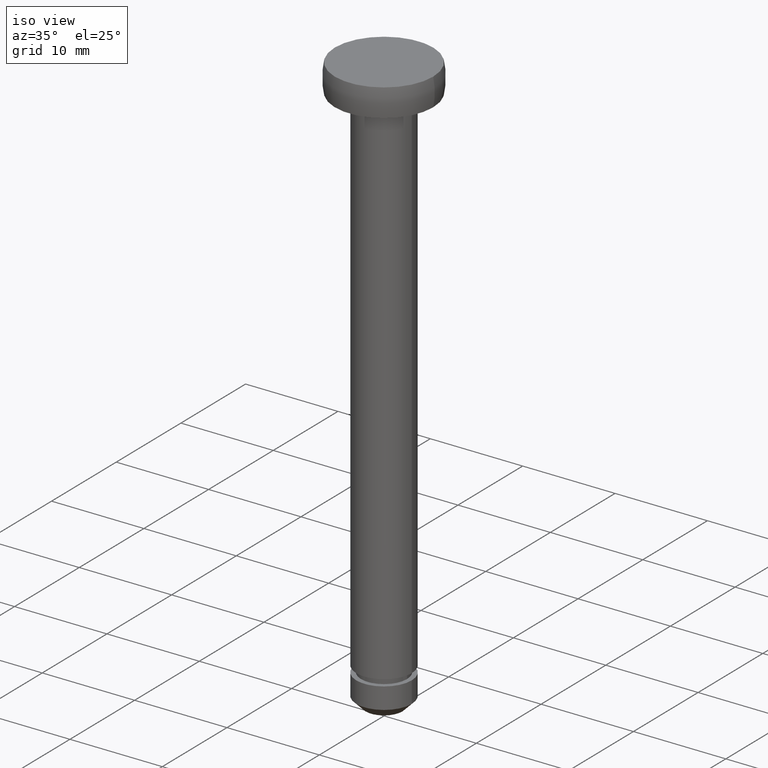
[diagram: clean part render]
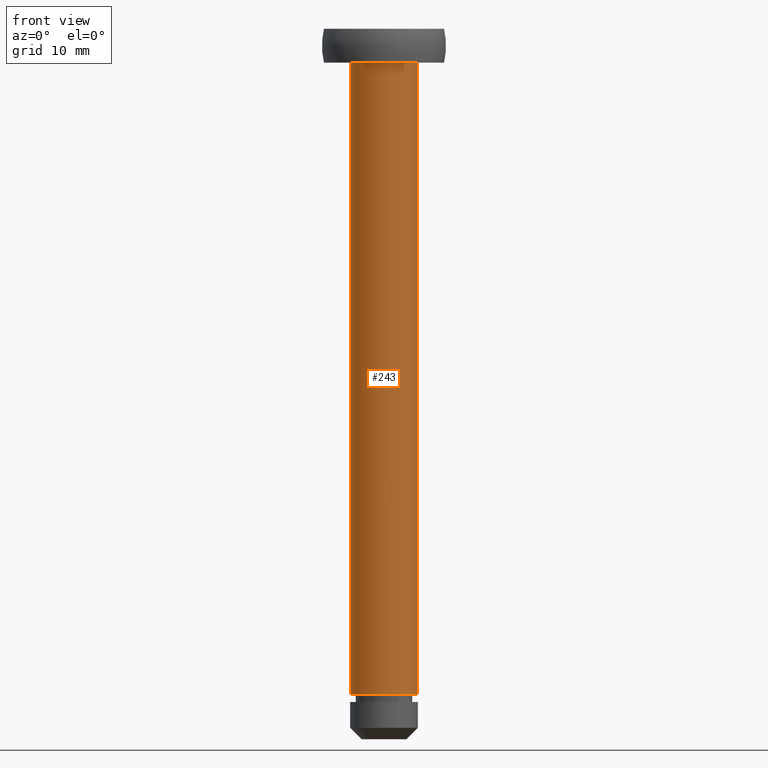
[diagram: tour spotlight — one face highlighted and labeled with its STEP entity id]
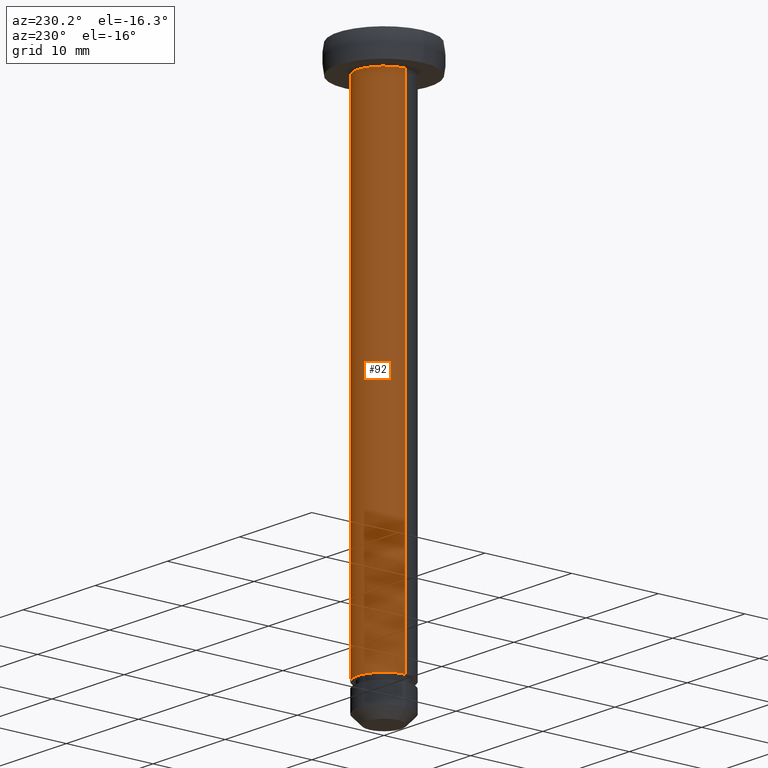
[diagram: tour spotlight — one face highlighted and labeled with its STEP entity id]
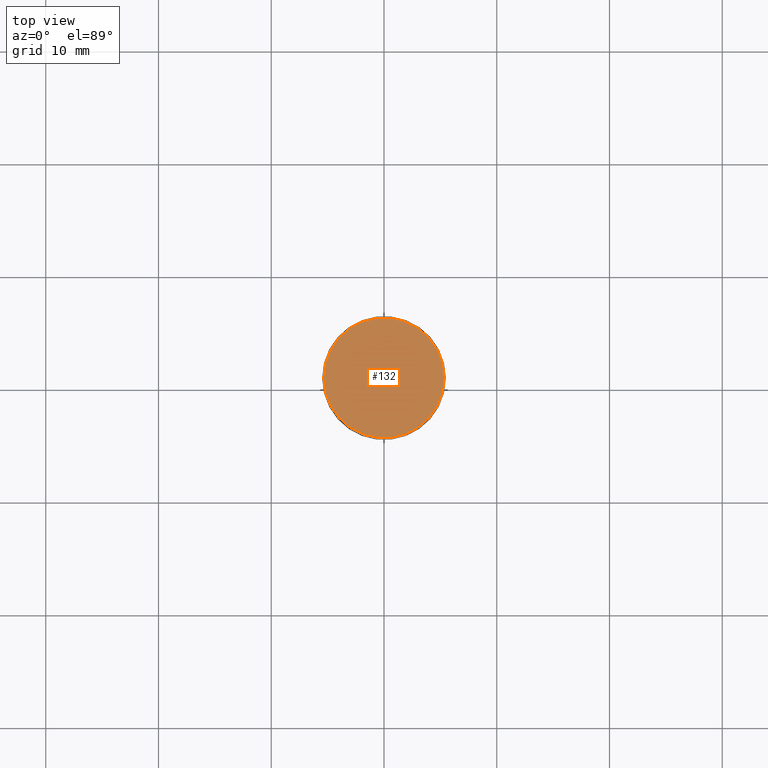
[diagram: tour spotlight — one face highlighted and labeled with its STEP entity id]
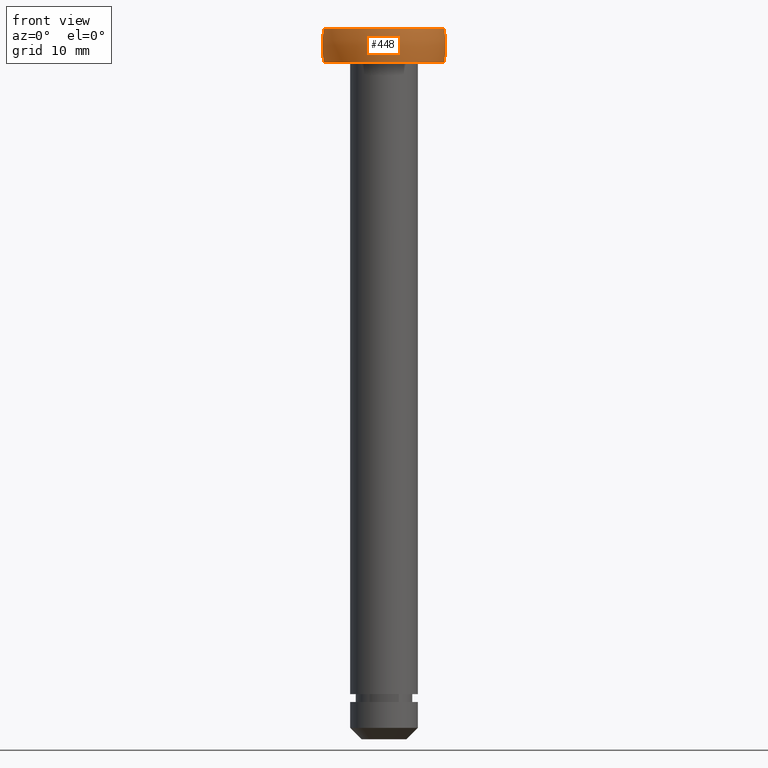
[diagram: tour spotlight — one face highlighted and labeled with its STEP entity id]
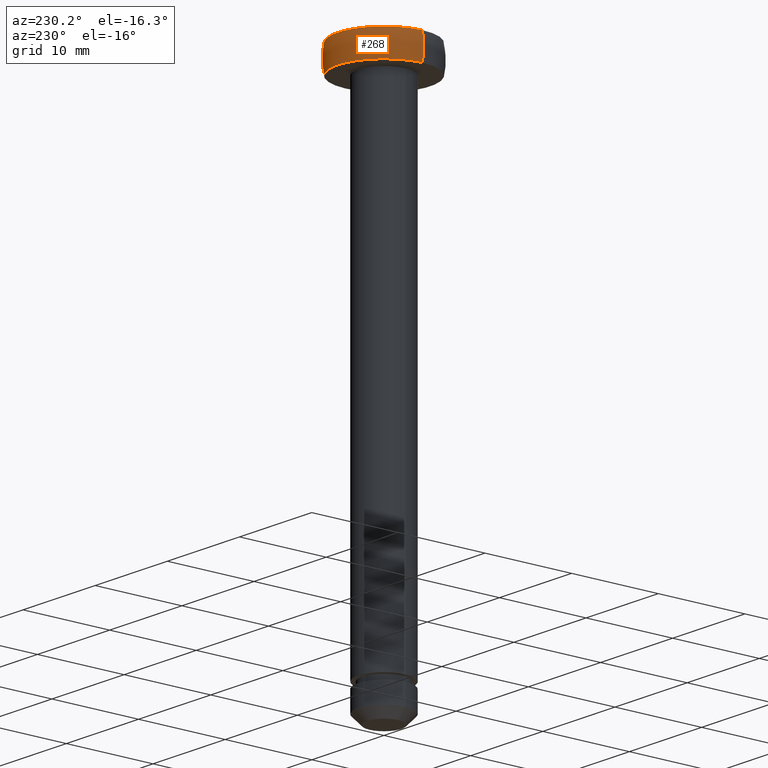
[diagram: tour spotlight — one face highlighted and labeled with its STEP entity id]
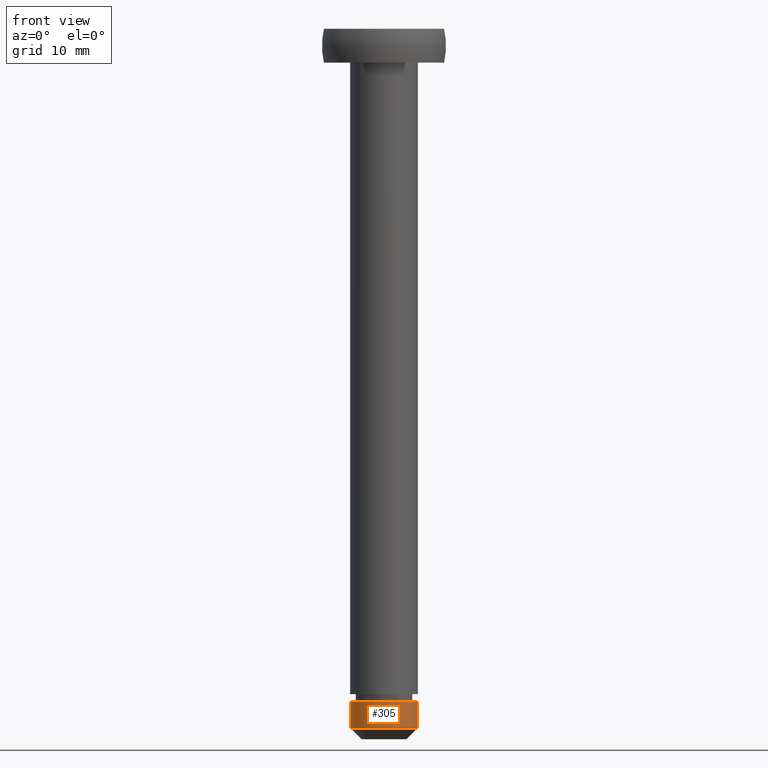
[diagram: tour spotlight — one face highlighted and labeled with its STEP entity id]
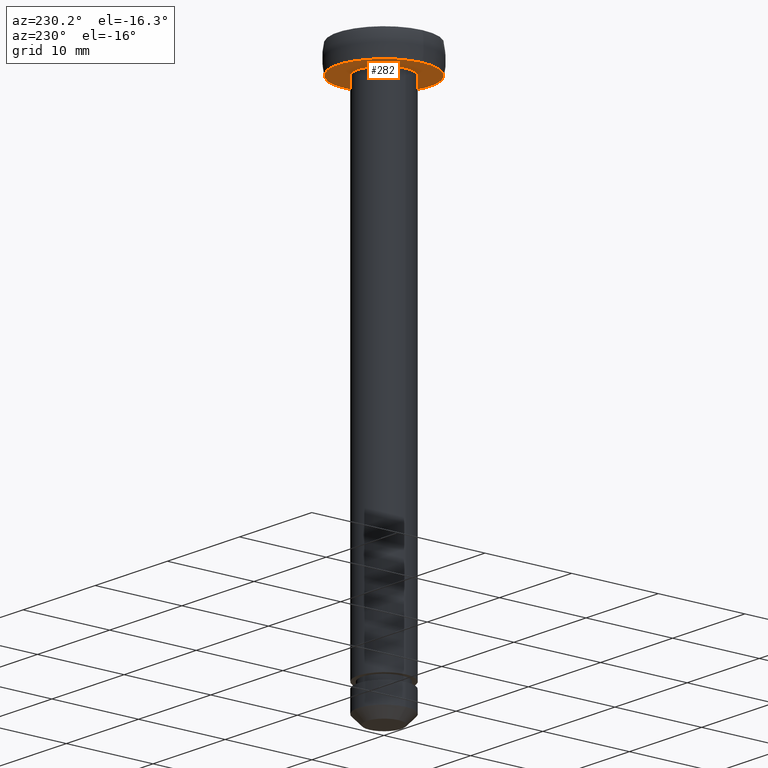
[diagram: tour spotlight — one face highlighted and labeled with its STEP entity id]
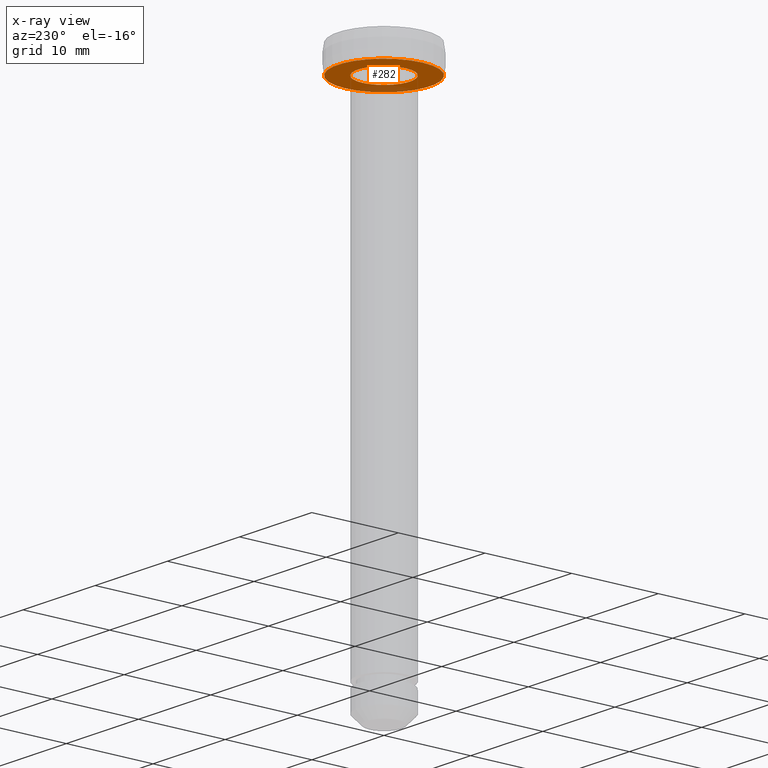
[diagram: x-ray of the same camera — body ghosted, this tour face saturated]
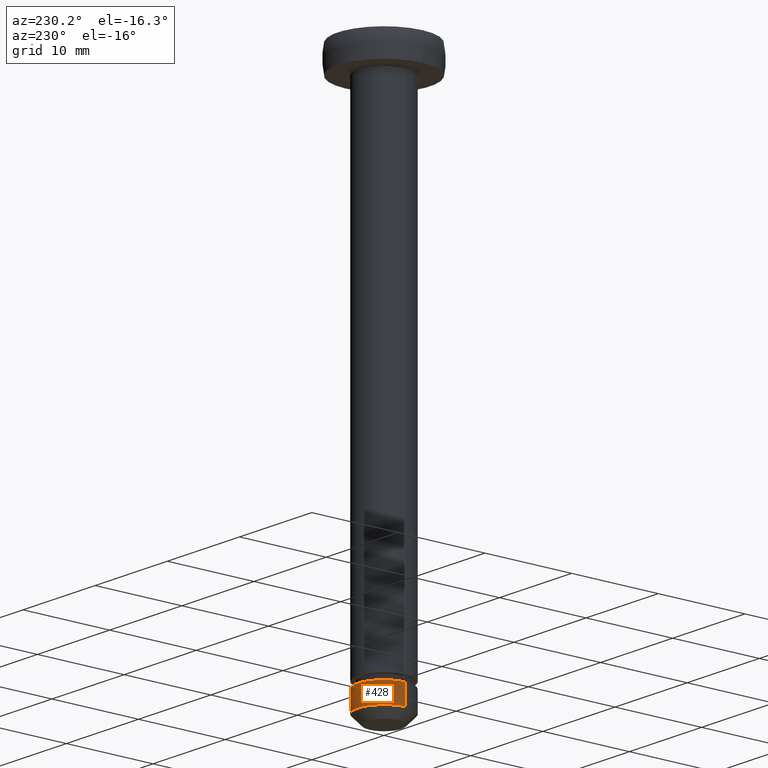
[diagram: tour spotlight — one face highlighted and labeled with its STEP entity id]
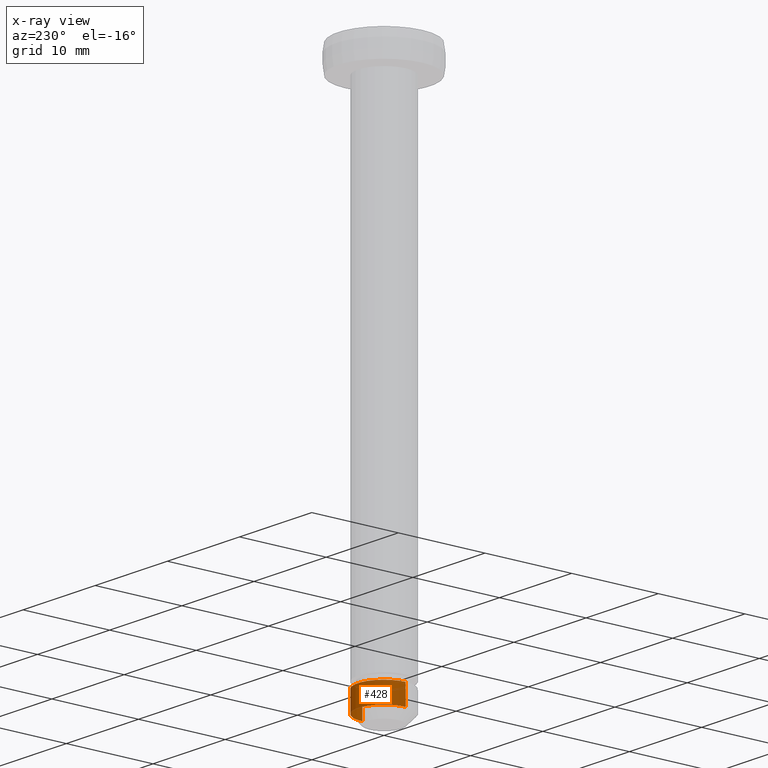
[diagram: x-ray of the same camera — body ghosted, this tour face saturated]
A machine part: a face-by-face anatomy tour. The part has 15 B-rep faces; the first image is the clean iso view, then the 8 largest visible faces are spotlighted one at a time (largest first), each with its STEP entity span.

Face 1 — front view, entity #243. In plain terms, the highlighted cylindrical surface (edge-blend (fillet) strip) has radius 3 mm, axis along (0, 0, -1).
Definition (entity closure, byte-faithful):
#5 = EDGE_LOOP ( 'NONE', ( #110, #356, #138, #108 ) ) ;
#18 = AXIS2_PLACEMENT_3D ( 'NONE', #187, #144, #368 ) ;
#28 = VERTEX_POINT ( 'NONE', #376 ) ;
#38 = CYLINDRICAL_SURFACE ( 'NONE', #157, 3.000000000000000000 ) ;
#51 = VERTEX_POINT ( 'NONE', #265 ) ;
#65 = LINE ( 'NONE', #66, #375 ) ;
#66 = CARTESIAN_POINT ( 'NONE',  ( 3.000000000000000000, 3.673940397442059900E-016, 63.00000000000000000 ) ) ;
#73 = DIRECTION ( 'NONE',  ( 0.0000000000000000000, 0.0000000000000000000, -1.000000000000000000 ) ) ;
#81 = CIRCLE ( 'NONE', #18, 3.000000000000000000 ) ;
#89 = LINE ( 'NONE', #228, #208 ) ;
#93 = CARTESIAN_POINT ( 'NONE',  ( 0.0000000000000000000, 0.0000000000000000000, 59.99999998195649900 ) ) ;
#95 = DIRECTION ( 'NONE',  ( -1.000000000000000000, 0.0000000000000000000, 0.0000000000000000000 ) ) ;
#97 = VERTEX_POINT ( 'NONE', #193 ) ;
#108 = ORIENTED_EDGE ( 'NONE', *, *, #197, .F. ) ;
#110 = ORIENTED_EDGE ( 'NONE', *, *, #154, .F. ) ;
#138 = ORIENTED_EDGE ( 'NONE', *, *, #226, .T. ) ;
#141 = DIRECTION ( 'NONE',  ( -1.000000000000000000, 0.0000000000000000000, 0.0000000000000000000 ) ) ;
#144 = DIRECTION ( 'NONE',  ( 0.0000000000000000000, 0.0000000000000000000, -1.000000000000000000 ) ) ;
#154 = EDGE_CURVE ( 'NONE', #28, #172, #65, .T. ) ;
#157 = AXIS2_PLACEMENT_3D ( 'NONE', #439, #225, #141 ) ;
#172 = VERTEX_POINT ( 'NONE', #332 ) ;
#187 = CARTESIAN_POINT ( 'NONE',  ( 0.0000000000000000000, 0.0000000000000000000, 3.999999981956506200 ) ) ;
#189 = CIRCLE ( 'NONE', #459, 3.000000000000000000 ) ;
#193 = CARTESIAN_POINT ( 'NONE',  ( -3.000000000000000000, 0.0000000000000000000, 59.99999998195649900 ) ) ;
#197 = EDGE_CURVE ( 'NONE', #172, #51, #81, .T. ) ;
#208 = VECTOR ( 'NONE', #73, 1000.000000000000000 ) ;
#225 = DIRECTION ( 'NONE',  ( 0.0000000000000000000, 0.0000000000000000000, -1.000000000000000000 ) ) ;
#226 = EDGE_CURVE ( 'NONE', #97, #51, #89, .T. ) ;
#228 = CARTESIAN_POINT ( 'NONE',  ( -3.000000000000000000, 0.0000000000000000000, 63.00000000000000000 ) ) ;
#243 = ADVANCED_FACE ( 'NONE', ( #399 ), #38, .T. ) ;
#265 = CARTESIAN_POINT ( 'NONE',  ( -3.000000000000000000, 0.0000000000000000000, 3.999999981956506200 ) ) ;
#332 = CARTESIAN_POINT ( 'NONE',  ( 3.000000000000000000, 3.673940397442059900E-016, 3.999999981956506200 ) ) ;
#354 = DIRECTION ( 'NONE',  ( 0.0000000000000000000, 0.0000000000000000000, -1.000000000000000000 ) ) ;
#356 = ORIENTED_EDGE ( 'NONE', *, *, #424, .T. ) ;
#368 = DIRECTION ( 'NONE',  ( -1.000000000000000000, 0.0000000000000000000, 0.0000000000000000000 ) ) ;
#375 = VECTOR ( 'NONE', #405, 1000.000000000000000 ) ;
#376 = CARTESIAN_POINT ( 'NONE',  ( 3.000000000000000000, 3.673940397442059900E-016, 59.99999998195649900 ) ) ;
#399 = FACE_OUTER_BOUND ( 'NONE', #5, .T. ) ;
#405 = DIRECTION ( 'NONE',  ( 0.0000000000000000000, 0.0000000000000000000, -1.000000000000000000 ) ) ;
#424 = EDGE_CURVE ( 'NONE', #28, #97, #189, .T. ) ;
#439 = CARTESIAN_POINT ( 'NONE',  ( 0.0000000000000000000, 0.0000000000000000000, 63.00000000000000000 ) ) ;
#459 = AXIS2_PLACEMENT_3D ( 'NONE', #93, #354, #95 ) ;

Face 2 — auxiliary view, entity #92. In plain terms, the highlighted cylindrical surface (edge-blend (fillet) strip) has radius 3 mm, axis along (0, 0, -1).
Definition (entity closure, byte-faithful):
#28 = VERTEX_POINT ( 'NONE', #376 ) ;
#51 = VERTEX_POINT ( 'NONE', #265 ) ;
#65 = LINE ( 'NONE', #66, #375 ) ;
#66 = CARTESIAN_POINT ( 'NONE',  ( 3.000000000000000000, 3.673940397442059900E-016, 63.00000000000000000 ) ) ;
#73 = DIRECTION ( 'NONE',  ( 0.0000000000000000000, 0.0000000000000000000, -1.000000000000000000 ) ) ;
#87 = ORIENTED_EDGE ( 'NONE', *, *, #143, .T. ) ;
#89 = LINE ( 'NONE', #228, #208 ) ;
#92 = ADVANCED_FACE ( 'NONE', ( #363 ), #206, .T. ) ;
#97 = VERTEX_POINT ( 'NONE', #193 ) ;
#127 = DIRECTION ( 'NONE',  ( 0.0000000000000000000, 0.0000000000000000000, -1.000000000000000000 ) ) ;
#137 = ORIENTED_EDGE ( 'NONE', *, *, #338, .F. ) ;
#143 = EDGE_CURVE ( 'NONE', #97, #28, #421, .T. ) ;
#154 = EDGE_CURVE ( 'NONE', #28, #172, #65, .T. ) ;
#172 = VERTEX_POINT ( 'NONE', #332 ) ;
#184 = EDGE_LOOP ( 'NONE', ( #87, #443, #137, #286 ) ) ;
#193 = CARTESIAN_POINT ( 'NONE',  ( -3.000000000000000000, 0.0000000000000000000, 59.99999998195649900 ) ) ;
#194 = AXIS2_PLACEMENT_3D ( 'NONE', #425, #457, #201 ) ;
#201 = DIRECTION ( 'NONE',  ( -1.000000000000000000, 0.0000000000000000000, 0.0000000000000000000 ) ) ;
#202 = CIRCLE ( 'NONE', #194, 3.000000000000000000 ) ;
#206 = CYLINDRICAL_SURFACE ( 'NONE', #400, 3.000000000000000000 ) ;
#208 = VECTOR ( 'NONE', #73, 1000.000000000000000 ) ;
#226 = EDGE_CURVE ( 'NONE', #97, #51, #89, .T. ) ;
#228 = CARTESIAN_POINT ( 'NONE',  ( -3.000000000000000000, 0.0000000000000000000, 63.00000000000000000 ) ) ;
#236 = DIRECTION ( 'NONE',  ( -1.000000000000000000, 0.0000000000000000000, 0.0000000000000000000 ) ) ;
#265 = CARTESIAN_POINT ( 'NONE',  ( -3.000000000000000000, 0.0000000000000000000, 3.999999981956506200 ) ) ;
#286 = ORIENTED_EDGE ( 'NONE', *, *, #226, .F. ) ;
#332 = CARTESIAN_POINT ( 'NONE',  ( 3.000000000000000000, 3.673940397442059900E-016, 3.999999981956506200 ) ) ;
#338 = EDGE_CURVE ( 'NONE', #51, #172, #202, .T. ) ;
#342 = CARTESIAN_POINT ( 'NONE',  ( 0.0000000000000000000, 0.0000000000000000000, 59.99999998195649900 ) ) ;
#363 = FACE_OUTER_BOUND ( 'NONE', #184, .T. ) ;
#375 = VECTOR ( 'NONE', #405, 1000.000000000000000 ) ;
#376 = CARTESIAN_POINT ( 'NONE',  ( 3.000000000000000000, 3.673940397442059900E-016, 59.99999998195649900 ) ) ;
#381 = DIRECTION ( 'NONE',  ( 0.0000000000000000000, 0.0000000000000000000, -1.000000000000000000 ) ) ;
#383 = DIRECTION ( 'NONE',  ( -1.000000000000000000, 0.0000000000000000000, 0.0000000000000000000 ) ) ;
#394 = AXIS2_PLACEMENT_3D ( 'NONE', #342, #127, #383 ) ;
#400 = AXIS2_PLACEMENT_3D ( 'NONE', #420, #381, #236 ) ;
#405 = DIRECTION ( 'NONE',  ( 0.0000000000000000000, 0.0000000000000000000, -1.000000000000000000 ) ) ;
#420 = CARTESIAN_POINT ( 'NONE',  ( 0.0000000000000000000, 0.0000000000000000000, 63.00000000000000000 ) ) ;
#421 = CIRCLE ( 'NONE', #394, 3.000000000000000000 ) ;
#425 = CARTESIAN_POINT ( 'NONE',  ( 0.0000000000000000000, 0.0000000000000000000, 3.999999981956506200 ) ) ;
#443 = ORIENTED_EDGE ( 'NONE', *, *, #154, .T. ) ;
#457 = DIRECTION ( 'NONE',  ( 0.0000000000000000000, 0.0000000000000000000, -1.000000000000000000 ) ) ;

Face 3 — top view, entity #132. In plain terms, the highlighted planar face has unit normal (0, 0, 1).
Definition (entity closure, byte-faithful):
#12 = VERTEX_POINT ( 'NONE', #446 ) ;
#14 = CIRCLE ( 'NONE', #423, 5.328427118366794200 ) ;
#35 = AXIS2_PLACEMENT_3D ( 'NONE', #169, #430, #213 ) ;
#40 = CARTESIAN_POINT ( 'NONE',  ( -5.328427118366794200, 0.0000000000000000000, 63.00000000000000000 ) ) ;
#46 = CARTESIAN_POINT ( 'NONE',  ( 0.0000000000000000000, 0.0000000000000000000, 63.00000000000000000 ) ) ;
#83 = PLANE ( 'NONE',  #340 ) ;
#116 = DIRECTION ( 'NONE',  ( 1.000000000000000000, 0.0000000000000000000, 0.0000000000000000000 ) ) ;
#118 = EDGE_CURVE ( 'NONE', #12, #185, #14, .T. ) ;
#132 = ADVANCED_FACE ( 'NONE', ( #380 ), #83, .T. ) ;
#148 = DIRECTION ( 'NONE',  ( 0.0000000000000000000, -0.0000000000000000000, 1.000000000000000000 ) ) ;
#169 = CARTESIAN_POINT ( 'NONE',  ( 0.0000000000000000000, 0.0000000000000000000, 63.00000000000000000 ) ) ;
#185 = VERTEX_POINT ( 'NONE', #40 ) ;
#192 = DIRECTION ( 'NONE',  ( 0.0000000000000000000, 0.0000000000000000000, -1.000000000000000000 ) ) ;
#196 = ORIENTED_EDGE ( 'NONE', *, *, #118, .F. ) ;
#213 = DIRECTION ( 'NONE',  ( -1.000000000000000000, 0.0000000000000000000, 0.0000000000000000000 ) ) ;
#229 = ORIENTED_EDGE ( 'NONE', *, *, #435, .F. ) ;
#232 = DIRECTION ( 'NONE',  ( -1.000000000000000000, 0.0000000000000000000, 0.0000000000000000000 ) ) ;
#269 = CARTESIAN_POINT ( 'NONE',  ( 5.328427118366794200, 0.0000000000000000000, 63.00000000000000000 ) ) ;
#279 = CIRCLE ( 'NONE', #35, 5.328427118366794200 ) ;
#306 = EDGE_LOOP ( 'NONE', ( #229, #196 ) ) ;
#340 = AXIS2_PLACEMENT_3D ( 'NONE', #269, #148, #116 ) ;
#380 = FACE_OUTER_BOUND ( 'NONE', #306, .T. ) ;
#423 = AXIS2_PLACEMENT_3D ( 'NONE', #46, #192, #232 ) ;
#430 = DIRECTION ( 'NONE',  ( 0.0000000000000000000, 0.0000000000000000000, -1.000000000000000000 ) ) ;
#435 = EDGE_CURVE ( 'NONE', #185, #12, #279, .T. ) ;
#446 = CARTESIAN_POINT ( 'NONE',  ( 5.328427118366793300, 6.525441214997859000E-016, 63.00000000000000000 ) ) ;

Face 4 — front view, entity #448. In plain terms, the highlighted toroidal blend (fillet) surface has major radius 1.1428 mm and minor (blend) radius 6.6428 mm.
Definition (entity closure, byte-faithful):
#2 = CARTESIAN_POINT ( 'NONE',  ( 1.142766791230102100, 0.0000000000000000000, 61.49999999097819600 ) ) ;
#12 = VERTEX_POINT ( 'NONE', #446 ) ;
#13 = CARTESIAN_POINT ( 'NONE',  ( 5.328427118366801300, 6.525441214997862900E-016, 59.99999998195649900 ) ) ;
#14 = CIRCLE ( 'NONE', #423, 5.328427118366794200 ) ;
#40 = CARTESIAN_POINT ( 'NONE',  ( -5.328427118366794200, 0.0000000000000000000, 63.00000000000000000 ) ) ;
#46 = CARTESIAN_POINT ( 'NONE',  ( 0.0000000000000000000, 0.0000000000000000000, 63.00000000000000000 ) ) ;
#52 = DIRECTION ( 'NONE',  ( 0.0000000000000000000, 0.0000000000000000000, -1.000000000000000000 ) ) ;
#64 = CARTESIAN_POINT ( 'NONE',  ( -1.142766791230102100, -1.399485693051835900E-016, 61.49999999097819600 ) ) ;
#79 = AXIS2_PLACEMENT_3D ( 'NONE', #135, #52, #464 ) ;
#100 = DIRECTION ( 'NONE',  ( -1.224646799147353200E-016, 1.000000000000000000, 0.0000000000000000000 ) ) ;
#109 = AXIS2_PLACEMENT_3D ( 'NONE', #2, #182, #407 ) ;
#118 = EDGE_CURVE ( 'NONE', #12, #185, #14, .T. ) ;
#125 = CIRCLE ( 'NONE', #109, 6.642766791230083200 ) ;
#126 = EDGE_CURVE ( 'NONE', #159, #408, #181, .T. ) ;
#129 = ORIENTED_EDGE ( 'NONE', *, *, #118, .T. ) ;
#133 = CARTESIAN_POINT ( 'NONE',  ( -5.328427118366800400, 0.0000000000000000000, 59.99999998195649900 ) ) ;
#135 = CARTESIAN_POINT ( 'NONE',  ( 0.0000000000000000000, 0.0000000000000000000, 61.49999999097819600 ) ) ;
#153 = DIRECTION ( 'NONE',  ( -1.000000000000000000, 0.0000000000000000000, 0.0000000000000000000 ) ) ;
#159 = VERTEX_POINT ( 'NONE', #13 ) ;
#181 = CIRCLE ( 'NONE', #343, 5.328427118366800400 ) ;
#182 = DIRECTION ( 'NONE',  ( -0.0000000000000000000, -1.000000000000000000, -0.0000000000000000000 ) ) ;
#185 = VERTEX_POINT ( 'NONE', #40 ) ;
#186 = AXIS2_PLACEMENT_3D ( 'NONE', #64, #100, #325 ) ;
#192 = DIRECTION ( 'NONE',  ( 0.0000000000000000000, 0.0000000000000000000, -1.000000000000000000 ) ) ;
#232 = DIRECTION ( 'NONE',  ( -1.000000000000000000, 0.0000000000000000000, 0.0000000000000000000 ) ) ;
#249 = EDGE_CURVE ( 'NONE', #185, #408, #125, .T. ) ;
#250 = EDGE_CURVE ( 'NONE', #12, #159, #355, .T. ) ;
#285 = ORIENTED_EDGE ( 'NONE', *, *, #250, .F. ) ;
#325 = DIRECTION ( 'NONE',  ( -1.000000000000000000, -1.224646799147353200E-016, 0.0000000000000000000 ) ) ;
#343 = AXIS2_PLACEMENT_3D ( 'NONE', #413, #379, #153 ) ;
#346 = TOROIDAL_SURFACE ( 'NONE', #79, -1.142766791230102100, 6.642766791230085000 ) ;
#355 = CIRCLE ( 'NONE', #186, 6.642766791230085000 ) ;
#357 = ORIENTED_EDGE ( 'NONE', *, *, #249, .T. ) ;
#373 = FACE_OUTER_BOUND ( 'NONE', #467, .T. ) ;
#379 = DIRECTION ( 'NONE',  ( 0.0000000000000000000, 0.0000000000000000000, -1.000000000000000000 ) ) ;
#407 = DIRECTION ( 'NONE',  ( 0.0000000000000000000, 0.0000000000000000000, -1.000000000000000000 ) ) ;
#408 = VERTEX_POINT ( 'NONE', #133 ) ;
#413 = CARTESIAN_POINT ( 'NONE',  ( 0.0000000000000000000, 0.0000000000000000000, 59.99999998195649900 ) ) ;
#423 = AXIS2_PLACEMENT_3D ( 'NONE', #46, #192, #232 ) ;
#446 = CARTESIAN_POINT ( 'NONE',  ( 5.328427118366793300, 6.525441214997859000E-016, 63.00000000000000000 ) ) ;
#448 = ADVANCED_FACE ( 'NONE', ( #373 ), #346, .T. ) ;
#456 = ORIENTED_EDGE ( 'NONE', *, *, #126, .F. ) ;
#464 = DIRECTION ( 'NONE',  ( -1.000000000000000000, 0.0000000000000000000, 0.0000000000000000000 ) ) ;
#467 = EDGE_LOOP ( 'NONE', ( #285, #129, #357, #456 ) ) ;

Face 5 — auxiliary view, entity #268. In plain terms, the highlighted toroidal blend (fillet) surface has major radius 1.1428 mm and minor (blend) radius 6.6428 mm.
Definition (entity closure, byte-faithful):
#2 = CARTESIAN_POINT ( 'NONE',  ( 1.142766791230102100, 0.0000000000000000000, 61.49999999097819600 ) ) ;
#12 = VERTEX_POINT ( 'NONE', #446 ) ;
#13 = CARTESIAN_POINT ( 'NONE',  ( 5.328427118366801300, 6.525441214997862900E-016, 59.99999998195649900 ) ) ;
#35 = AXIS2_PLACEMENT_3D ( 'NONE', #169, #430, #213 ) ;
#40 = CARTESIAN_POINT ( 'NONE',  ( -5.328427118366794200, 0.0000000000000000000, 63.00000000000000000 ) ) ;
#61 = FACE_OUTER_BOUND ( 'NONE', #200, .T. ) ;
#64 = CARTESIAN_POINT ( 'NONE',  ( -1.142766791230102100, -1.399485693051835900E-016, 61.49999999097819600 ) ) ;
#69 = DIRECTION ( 'NONE',  ( 0.0000000000000000000, 0.0000000000000000000, -1.000000000000000000 ) ) ;
#90 = CIRCLE ( 'NONE', #341, 5.328427118366800400 ) ;
#100 = DIRECTION ( 'NONE',  ( -1.224646799147353200E-016, 1.000000000000000000, 0.0000000000000000000 ) ) ;
#109 = AXIS2_PLACEMENT_3D ( 'NONE', #2, #182, #407 ) ;
#115 = ORIENTED_EDGE ( 'NONE', *, *, #362, .F. ) ;
#125 = CIRCLE ( 'NONE', #109, 6.642766791230083200 ) ;
#133 = CARTESIAN_POINT ( 'NONE',  ( -5.328427118366800400, 0.0000000000000000000, 59.99999998195649900 ) ) ;
#147 = ORIENTED_EDGE ( 'NONE', *, *, #250, .T. ) ;
#159 = VERTEX_POINT ( 'NONE', #13 ) ;
#164 = DIRECTION ( 'NONE',  ( 0.0000000000000000000, 0.0000000000000000000, -1.000000000000000000 ) ) ;
#168 = AXIS2_PLACEMENT_3D ( 'NONE', #436, #69, #179 ) ;
#169 = CARTESIAN_POINT ( 'NONE',  ( 0.0000000000000000000, 0.0000000000000000000, 63.00000000000000000 ) ) ;
#179 = DIRECTION ( 'NONE',  ( -1.000000000000000000, 0.0000000000000000000, 0.0000000000000000000 ) ) ;
#182 = DIRECTION ( 'NONE',  ( -0.0000000000000000000, -1.000000000000000000, -0.0000000000000000000 ) ) ;
#185 = VERTEX_POINT ( 'NONE', #40 ) ;
#186 = AXIS2_PLACEMENT_3D ( 'NONE', #64, #100, #325 ) ;
#200 = EDGE_LOOP ( 'NONE', ( #214, #147, #115, #432 ) ) ;
#213 = DIRECTION ( 'NONE',  ( -1.000000000000000000, 0.0000000000000000000, 0.0000000000000000000 ) ) ;
#214 = ORIENTED_EDGE ( 'NONE', *, *, #435, .T. ) ;
#249 = EDGE_CURVE ( 'NONE', #185, #408, #125, .T. ) ;
#250 = EDGE_CURVE ( 'NONE', #12, #159, #355, .T. ) ;
#268 = ADVANCED_FACE ( 'NONE', ( #61 ), #417, .T. ) ;
#279 = CIRCLE ( 'NONE', #35, 5.328427118366794200 ) ;
#325 = DIRECTION ( 'NONE',  ( -1.000000000000000000, -1.224646799147353200E-016, 0.0000000000000000000 ) ) ;
#341 = AXIS2_PLACEMENT_3D ( 'NONE', #388, #164, #427 ) ;
#355 = CIRCLE ( 'NONE', #186, 6.642766791230085000 ) ;
#362 = EDGE_CURVE ( 'NONE', #408, #159, #90, .T. ) ;
#388 = CARTESIAN_POINT ( 'NONE',  ( 0.0000000000000000000, 0.0000000000000000000, 59.99999998195649900 ) ) ;
#407 = DIRECTION ( 'NONE',  ( 0.0000000000000000000, 0.0000000000000000000, -1.000000000000000000 ) ) ;
#408 = VERTEX_POINT ( 'NONE', #133 ) ;
#417 = TOROIDAL_SURFACE ( 'NONE', #168, -1.142766791230102100, 6.642766791230085000 ) ;
#427 = DIRECTION ( 'NONE',  ( -1.000000000000000000, 0.0000000000000000000, 0.0000000000000000000 ) ) ;
#430 = DIRECTION ( 'NONE',  ( 0.0000000000000000000, 0.0000000000000000000, -1.000000000000000000 ) ) ;
#432 = ORIENTED_EDGE ( 'NONE', *, *, #249, .F. ) ;
#435 = EDGE_CURVE ( 'NONE', #185, #12, #279, .T. ) ;
#436 = CARTESIAN_POINT ( 'NONE',  ( 0.0000000000000000000, 0.0000000000000000000, 61.49999999097819600 ) ) ;
#446 = CARTESIAN_POINT ( 'NONE',  ( 5.328427118366793300, 6.525441214997859000E-016, 63.00000000000000000 ) ) ;

Face 6 — front view, entity #305. In plain terms, the highlighted cylindrical surface (edge-blend (fillet) strip) has radius 3 mm, axis along (0, 0, -1).
Definition (entity closure, byte-faithful):
#6 = VERTEX_POINT ( 'NONE', #304 ) ;
#22 = CARTESIAN_POINT ( 'NONE',  ( 0.0000000000000000000, 0.0000000000000000000, 63.00000000000000000 ) ) ;
#23 = VECTOR ( 'NONE', #254, 1000.000000000000000 ) ;
#25 = VERTEX_POINT ( 'NONE', #152 ) ;
#26 = DIRECTION ( 'NONE',  ( 0.0000000000000000000, 0.0000000000000000000, -1.000000000000000000 ) ) ;
#75 = VERTEX_POINT ( 'NONE', #273 ) ;
#80 = VECTOR ( 'NONE', #91, 1000.000000000000000 ) ;
#88 = ORIENTED_EDGE ( 'NONE', *, *, #344, .F. ) ;
#91 = DIRECTION ( 'NONE',  ( 0.0000000000000000000, 0.0000000000000000000, -1.000000000000000000 ) ) ;
#99 = CIRCLE ( 'NONE', #246, 3.000000000000000000 ) ;
#128 = DIRECTION ( 'NONE',  ( -1.000000000000000000, 0.0000000000000000000, 0.0000000000000000000 ) ) ;
#130 = CARTESIAN_POINT ( 'NONE',  ( 3.000000000000000000, 3.673940397442059900E-016, 63.00000000000000000 ) ) ;
#145 = EDGE_LOOP ( 'NONE', ( #297, #465, #174, #88 ) ) ;
#152 = CARTESIAN_POINT ( 'NONE',  ( -2.999999999999999600, 3.673940397442058900E-016, 0.9999999819565036400 ) ) ;
#163 = CARTESIAN_POINT ( 'NONE',  ( 0.0000000000000000000, 0.0000000000000000000, 3.299999981956493100 ) ) ;
#174 = ORIENTED_EDGE ( 'NONE', *, *, #301, .T. ) ;
#176 = LINE ( 'NONE', #130, #80 ) ;
#246 = AXIS2_PLACEMENT_3D ( 'NONE', #163, #386, #128 ) ;
#254 = DIRECTION ( 'NONE',  ( 0.0000000000000000000, 0.0000000000000000000, -1.000000000000000000 ) ) ;
#272 = AXIS2_PLACEMENT_3D ( 'NONE', #22, #317, #397 ) ;
#273 = CARTESIAN_POINT ( 'NONE',  ( 2.999999999999999600, 0.0000000000000000000, 0.9999999819565036400 ) ) ;
#278 = VERTEX_POINT ( 'NONE', #403 ) ;
#295 = AXIS2_PLACEMENT_3D ( 'NONE', #431, #26, #458 ) ;
#297 = ORIENTED_EDGE ( 'NONE', *, *, #371, .F. ) ;
#301 = EDGE_CURVE ( 'NONE', #6, #25, #412, .T. ) ;
#303 = FACE_OUTER_BOUND ( 'NONE', #145, .T. ) ;
#304 = CARTESIAN_POINT ( 'NONE',  ( -3.000000000000000000, 0.0000000000000000000, 3.299999981956493100 ) ) ;
#305 = ADVANCED_FACE ( 'NONE', ( #303 ), #387, .T. ) ;
#317 = DIRECTION ( 'NONE',  ( 0.0000000000000000000, 0.0000000000000000000, -1.000000000000000000 ) ) ;
#323 = EDGE_CURVE ( 'NONE', #278, #6, #99, .T. ) ;
#344 = EDGE_CURVE ( 'NONE', #75, #25, #402, .T. ) ;
#359 = CARTESIAN_POINT ( 'NONE',  ( -3.000000000000000000, 0.0000000000000000000, 63.00000000000000000 ) ) ;
#371 = EDGE_CURVE ( 'NONE', #278, #75, #176, .T. ) ;
#386 = DIRECTION ( 'NONE',  ( 0.0000000000000000000, 0.0000000000000000000, -1.000000000000000000 ) ) ;
#387 = CYLINDRICAL_SURFACE ( 'NONE', #272, 3.000000000000000000 ) ;
#397 = DIRECTION ( 'NONE',  ( -1.000000000000000000, 0.0000000000000000000, 0.0000000000000000000 ) ) ;
#402 = CIRCLE ( 'NONE', #295, 2.999999999999999600 ) ;
#403 = CARTESIAN_POINT ( 'NONE',  ( 3.000000000000000000, 3.673940397442059900E-016, 3.299999981956493100 ) ) ;
#412 = LINE ( 'NONE', #359, #23 ) ;
#431 = CARTESIAN_POINT ( 'NONE',  ( 0.0000000000000000000, 0.0000000000000000000, 0.9999999819565036400 ) ) ;
#458 = DIRECTION ( 'NONE',  ( -1.000000000000000000, 0.0000000000000000000, 0.0000000000000000000 ) ) ;
#465 = ORIENTED_EDGE ( 'NONE', *, *, #323, .T. ) ;

Face 7 — auxiliary view, entity #282. An x-ray twin of the same camera follows (body ghosted, this face saturated) — the face is partly hidden behind the body. In plain terms, the highlighted planar face has unit normal (0, 0, -1).
Definition (entity closure, byte-faithful):
#13 = CARTESIAN_POINT ( 'NONE',  ( 5.328427118366801300, 6.525441214997862900E-016, 59.99999998195649900 ) ) ;
#17 = ORIENTED_EDGE ( 'NONE', *, *, #126, .T. ) ;
#28 = VERTEX_POINT ( 'NONE', #376 ) ;
#32 = FACE_BOUND ( 'NONE', #188, .T. ) ;
#34 = ORIENTED_EDGE ( 'NONE', *, *, #143, .F. ) ;
#50 = ORIENTED_EDGE ( 'NONE', *, *, #362, .T. ) ;
#90 = CIRCLE ( 'NONE', #341, 5.328427118366800400 ) ;
#93 = CARTESIAN_POINT ( 'NONE',  ( 0.0000000000000000000, 0.0000000000000000000, 59.99999998195649900 ) ) ;
#95 = DIRECTION ( 'NONE',  ( -1.000000000000000000, 0.0000000000000000000, 0.0000000000000000000 ) ) ;
#97 = VERTEX_POINT ( 'NONE', #193 ) ;
#113 = FACE_OUTER_BOUND ( 'NONE', #211, .T. ) ;
#126 = EDGE_CURVE ( 'NONE', #159, #408, #181, .T. ) ;
#127 = DIRECTION ( 'NONE',  ( 0.0000000000000000000, 0.0000000000000000000, -1.000000000000000000 ) ) ;
#133 = CARTESIAN_POINT ( 'NONE',  ( -5.328427118366800400, 0.0000000000000000000, 59.99999998195649900 ) ) ;
#139 = PLANE ( 'NONE',  #222 ) ;
#140 = DIRECTION ( 'NONE',  ( 0.0000000000000000000, 0.0000000000000000000, -1.000000000000000000 ) ) ;
#143 = EDGE_CURVE ( 'NONE', #97, #28, #421, .T. ) ;
#153 = DIRECTION ( 'NONE',  ( -1.000000000000000000, 0.0000000000000000000, 0.0000000000000000000 ) ) ;
#159 = VERTEX_POINT ( 'NONE', #13 ) ;
#164 = DIRECTION ( 'NONE',  ( 0.0000000000000000000, 0.0000000000000000000, -1.000000000000000000 ) ) ;
#181 = CIRCLE ( 'NONE', #343, 5.328427118366800400 ) ;
#188 = EDGE_LOOP ( 'NONE', ( #34, #264 ) ) ;
#189 = CIRCLE ( 'NONE', #459, 3.000000000000000000 ) ;
#193 = CARTESIAN_POINT ( 'NONE',  ( -3.000000000000000000, 0.0000000000000000000, 59.99999998195649900 ) ) ;
#211 = EDGE_LOOP ( 'NONE', ( #50, #17 ) ) ;
#218 = CARTESIAN_POINT ( 'NONE',  ( 3.000000000000000000, 0.0000000000000000000, 59.99999998195649900 ) ) ;
#222 = AXIS2_PLACEMENT_3D ( 'NONE', #218, #140, #288 ) ;
#264 = ORIENTED_EDGE ( 'NONE', *, *, #424, .F. ) ;
#282 = ADVANCED_FACE ( 'NONE', ( #113, #32 ), #139, .T. ) ;
#288 = DIRECTION ( 'NONE',  ( -1.000000000000000000, 0.0000000000000000000, -0.0000000000000000000 ) ) ;
#341 = AXIS2_PLACEMENT_3D ( 'NONE', #388, #164, #427 ) ;
#342 = CARTESIAN_POINT ( 'NONE',  ( 0.0000000000000000000, 0.0000000000000000000, 59.99999998195649900 ) ) ;
#343 = AXIS2_PLACEMENT_3D ( 'NONE', #413, #379, #153 ) ;
#354 = DIRECTION ( 'NONE',  ( 0.0000000000000000000, 0.0000000000000000000, -1.000000000000000000 ) ) ;
#362 = EDGE_CURVE ( 'NONE', #408, #159, #90, .T. ) ;
#376 = CARTESIAN_POINT ( 'NONE',  ( 3.000000000000000000, 3.673940397442059900E-016, 59.99999998195649900 ) ) ;
#379 = DIRECTION ( 'NONE',  ( 0.0000000000000000000, 0.0000000000000000000, -1.000000000000000000 ) ) ;
#383 = DIRECTION ( 'NONE',  ( -1.000000000000000000, 0.0000000000000000000, 0.0000000000000000000 ) ) ;
#388 = CARTESIAN_POINT ( 'NONE',  ( 0.0000000000000000000, 0.0000000000000000000, 59.99999998195649900 ) ) ;
#394 = AXIS2_PLACEMENT_3D ( 'NONE', #342, #127, #383 ) ;
#408 = VERTEX_POINT ( 'NONE', #133 ) ;
#413 = CARTESIAN_POINT ( 'NONE',  ( 0.0000000000000000000, 0.0000000000000000000, 59.99999998195649900 ) ) ;
#421 = CIRCLE ( 'NONE', #394, 3.000000000000000000 ) ;
#424 = EDGE_CURVE ( 'NONE', #28, #97, #189, .T. ) ;
#427 = DIRECTION ( 'NONE',  ( -1.000000000000000000, 0.0000000000000000000, 0.0000000000000000000 ) ) ;
#459 = AXIS2_PLACEMENT_3D ( 'NONE', #93, #354, #95 ) ;

Face 8 — auxiliary view, entity #428. An x-ray twin of the same camera follows (body ghosted, this face saturated) — the face is partly hidden behind the body. In plain terms, the highlighted cylindrical surface (edge-blend (fillet) strip) has radius 3 mm, axis along (0, 0, -1).
Definition (entity closure, byte-faithful):
#6 = VERTEX_POINT ( 'NONE', #304 ) ;
#23 = VECTOR ( 'NONE', #254, 1000.000000000000000 ) ;
#25 = VERTEX_POINT ( 'NONE', #152 ) ;
#27 = CIRCLE ( 'NONE', #136, 3.000000000000000000 ) ;
#54 = AXIS2_PLACEMENT_3D ( 'NONE', #391, #55, #353 ) ;
#55 = DIRECTION ( 'NONE',  ( 0.0000000000000000000, 0.0000000000000000000, -1.000000000000000000 ) ) ;
#71 = EDGE_CURVE ( 'NONE', #25, #75, #166, .T. ) ;
#75 = VERTEX_POINT ( 'NONE', #273 ) ;
#80 = VECTOR ( 'NONE', #91, 1000.000000000000000 ) ;
#91 = DIRECTION ( 'NONE',  ( 0.0000000000000000000, 0.0000000000000000000, -1.000000000000000000 ) ) ;
#104 = DIRECTION ( 'NONE',  ( 0.0000000000000000000, 0.0000000000000000000, -1.000000000000000000 ) ) ;
#124 = DIRECTION ( 'NONE',  ( 0.0000000000000000000, 0.0000000000000000000, -1.000000000000000000 ) ) ;
#130 = CARTESIAN_POINT ( 'NONE',  ( 3.000000000000000000, 3.673940397442059900E-016, 63.00000000000000000 ) ) ;
#136 = AXIS2_PLACEMENT_3D ( 'NONE', #364, #104, #330 ) ;
#152 = CARTESIAN_POINT ( 'NONE',  ( -2.999999999999999600, 3.673940397442058900E-016, 0.9999999819565036400 ) ) ;
#161 = ORIENTED_EDGE ( 'NONE', *, *, #301, .F. ) ;
#166 = CIRCLE ( 'NONE', #275, 2.999999999999999600 ) ;
#176 = LINE ( 'NONE', #130, #80 ) ;
#234 = DIRECTION ( 'NONE',  ( -1.000000000000000000, 0.0000000000000000000, 0.0000000000000000000 ) ) ;
#245 = EDGE_CURVE ( 'NONE', #6, #278, #27, .T. ) ;
#254 = DIRECTION ( 'NONE',  ( 0.0000000000000000000, 0.0000000000000000000, -1.000000000000000000 ) ) ;
#273 = CARTESIAN_POINT ( 'NONE',  ( 2.999999999999999600, 0.0000000000000000000, 0.9999999819565036400 ) ) ;
#275 = AXIS2_PLACEMENT_3D ( 'NONE', #339, #124, #234 ) ;
#277 = ORIENTED_EDGE ( 'NONE', *, *, #71, .F. ) ;
#278 = VERTEX_POINT ( 'NONE', #403 ) ;
#301 = EDGE_CURVE ( 'NONE', #6, #25, #412, .T. ) ;
#304 = CARTESIAN_POINT ( 'NONE',  ( -3.000000000000000000, 0.0000000000000000000, 3.299999981956493100 ) ) ;
#324 = EDGE_LOOP ( 'NONE', ( #384, #334, #277, #161 ) ) ;
#330 = DIRECTION ( 'NONE',  ( -1.000000000000000000, 0.0000000000000000000, 0.0000000000000000000 ) ) ;
#334 = ORIENTED_EDGE ( 'NONE', *, *, #371, .T. ) ;
#339 = CARTESIAN_POINT ( 'NONE',  ( 0.0000000000000000000, 0.0000000000000000000, 0.9999999819565036400 ) ) ;
#353 = DIRECTION ( 'NONE',  ( -1.000000000000000000, 0.0000000000000000000, 0.0000000000000000000 ) ) ;
#359 = CARTESIAN_POINT ( 'NONE',  ( -3.000000000000000000, 0.0000000000000000000, 63.00000000000000000 ) ) ;
#360 = FACE_OUTER_BOUND ( 'NONE', #324, .T. ) ;
#364 = CARTESIAN_POINT ( 'NONE',  ( 0.0000000000000000000, 0.0000000000000000000, 3.299999981956493100 ) ) ;
#371 = EDGE_CURVE ( 'NONE', #278, #75, #176, .T. ) ;
#384 = ORIENTED_EDGE ( 'NONE', *, *, #245, .T. ) ;
#391 = CARTESIAN_POINT ( 'NONE',  ( 0.0000000000000000000, 0.0000000000000000000, 63.00000000000000000 ) ) ;
#403 = CARTESIAN_POINT ( 'NONE',  ( 3.000000000000000000, 3.673940397442059900E-016, 3.299999981956493100 ) ) ;
#412 = LINE ( 'NONE', #359, #23 ) ;
#428 = ADVANCED_FACE ( 'NONE', ( #360 ), #449, .T. ) ;
#449 = CYLINDRICAL_SURFACE ( 'NONE', #54, 3.000000000000000000 ) ;